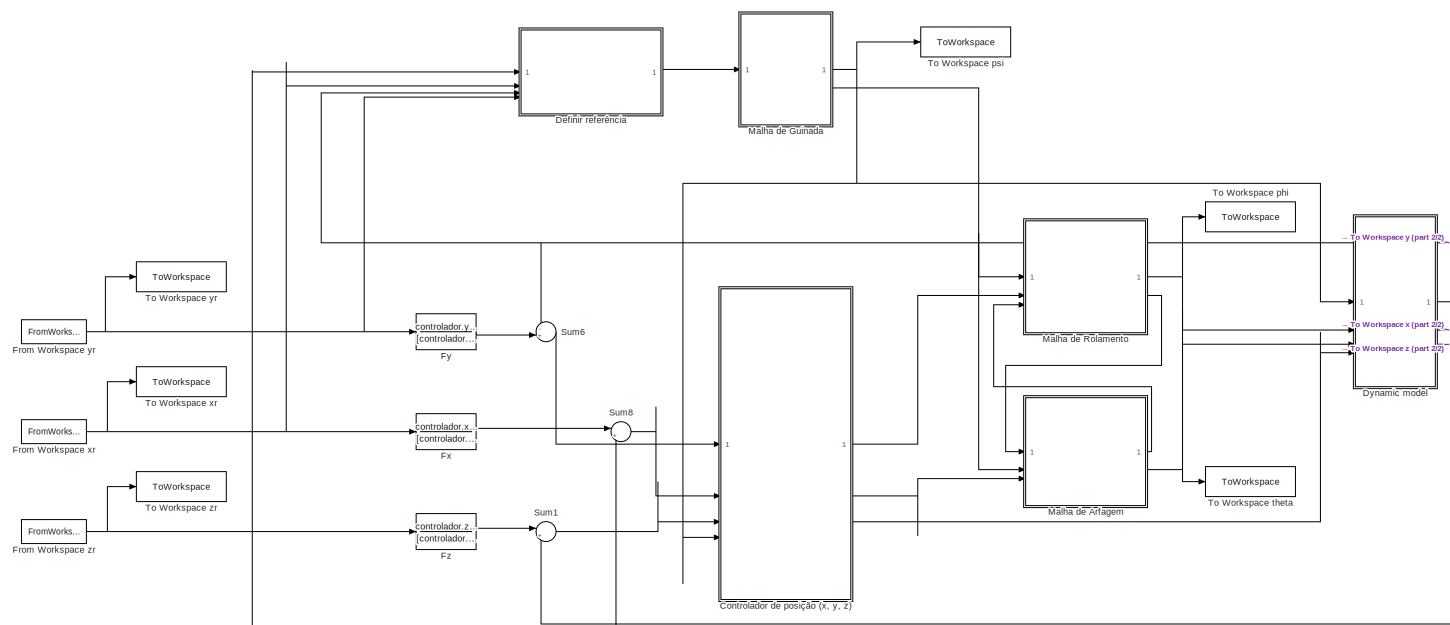
[diagram: root canvas - part 1/2, most of the canvas]
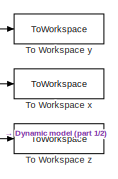
[diagram: root canvas - part 2/2, middle right region]
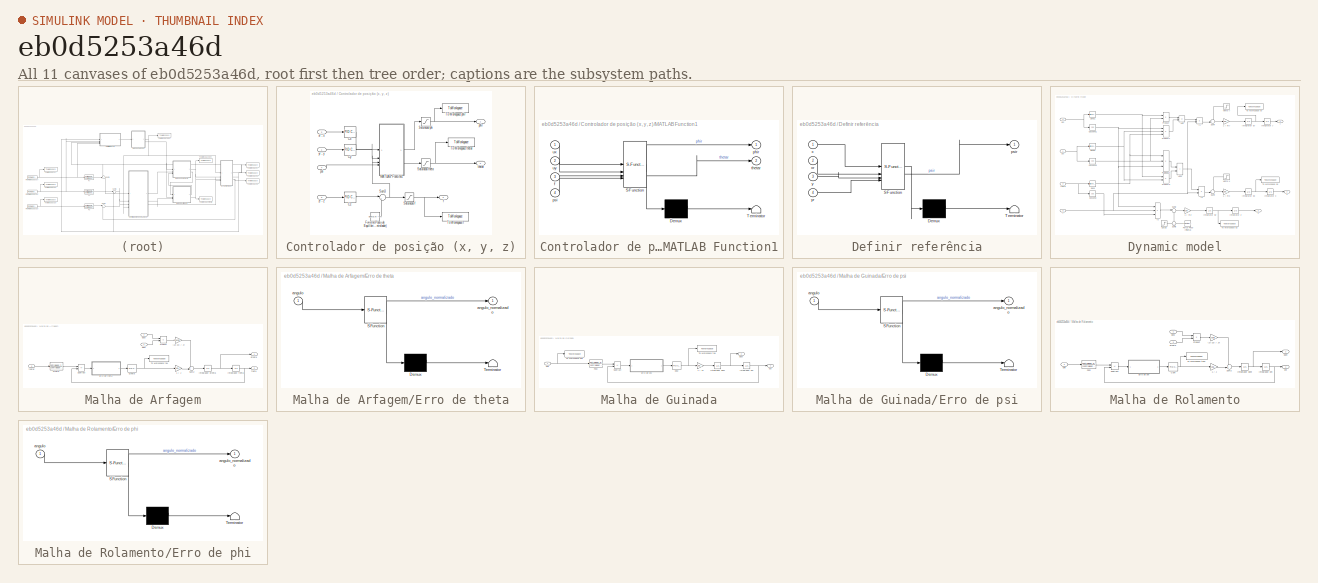
[diagram: thumbnail index - all 11 canvases of the model, root first then tree order]
MODEL slx_eb0d5253a46d
KIND model
CONFIG AbsTol = auto
CONFIG EnableMultiTasking = off
CONFIG FixedStep = 1e-3
CONFIG MaxStep = auto
CONFIG MinStep = auto
CONFIG RelTol = 1e-3
CONFIG SampleTimeConstraint = Unconstrained
CONFIG SolverName = ode1
CONFIG StartTime = 0.0
CONFIG StopTime = 20
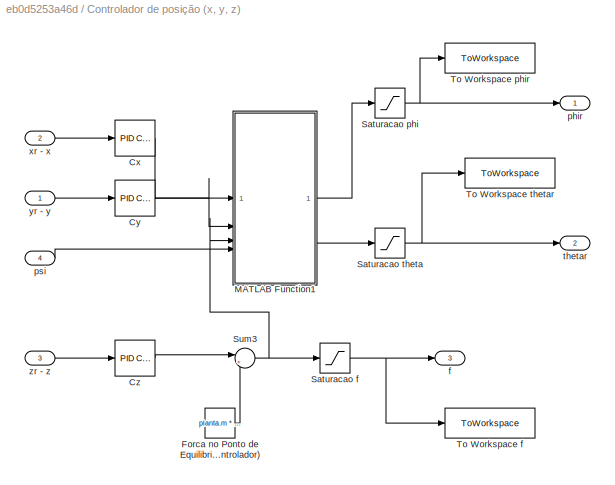
BLOCK [SubSystem] Controlador de posição (x, y, z)
BLOCK [Reference] Controlador de posição (x, y, z)/Cx  REF=slpidlib/PID Controller
  SourceBlock = slpidlib/PID Controller
  SourceType = PID 1dof
BLOCK [Reference] Controlador de posição (x, y, z)/Cy  REF=slpidlib/PID Controller
  SourceBlock = slpidlib/PID Controller
  SourceType = PID 1dof
BLOCK [Reference] Controlador de posição (x, y, z)/Cz  REF=slpidlib/PID Controller
  SourceBlock = slpidlib/PID Controller
  SourceType = PID 1dof
BLOCK [Constant] Controlador de posição (x, y, z)/Forca no Ponto de Equilibrio f0 (Controlador)
  Value = planta.m * planta.g
BLOCK [SubSystem] Controlador de posição (x, y, z)/MATLAB Function1
  ErrorFcn = Stateflow.Translate.translate
  PermitHierarchicalResolution = ExplicitOnly
  SFBlockType = MATLAB Function
  TreatAsAtomicUnit = on
BLOCK [Demux] Controlador de posição (x, y, z)/MATLAB Function1/ Demux 
  Outputs = 1
BLOCK [S-Function] Controlador de posição (x, y, z)/MATLAB Function1/ SFunction 
  EnableBusSupport = on
  FunctionName = sf_sfun
  PortCounts = [4 3]
  SFcnIsStateOwnerBlock = off
  SFunctionDeploymentMode = off
  Tag = Stateflow S-Function 6
BLOCK [Terminator] Controlador de posição (x, y, z)/MATLAB Function1/ Terminator 
BLOCK [Inport] Controlador de posição (x, y, z)/MATLAB Function1/f
  Port = 3
BLOCK [Outport] Controlador de posição (x, y, z)/MATLAB Function1/phir
BLOCK [Inport] Controlador de posição (x, y, z)/MATLAB Function1/psi
  Port = 4
BLOCK [Outport] Controlador de posição (x, y, z)/MATLAB Function1/thetar
  Port = 2
BLOCK [Inport] Controlador de posição (x, y, z)/MATLAB Function1/ux
BLOCK [Inport] Controlador de posição (x, y, z)/MATLAB Function1/uy
  Port = 2
BLOCK [Saturate] Controlador de posição (x, y, z)/Saturacao f
  LowerLimit = 0.2 * planta.m * planta.g
  UpperLimit = 1.8 * planta.m * planta.g
BLOCK [Saturate] Controlador de posição (x, y, z)/Saturacao phi
  LowerLimit = -20 * pi / 180
  UpperLimit = 20 * pi / 180
BLOCK [Saturate] Controlador de posição (x, y, z)/Saturacao theta
  LowerLimit = -20 * pi / 180
  UpperLimit = 20 * pi / 180
BLOCK [Sum] Controlador de posição (x, y, z)/Sum3
  Inputs = |++
BLOCK [ToWorkspace] Controlador de posição (x, y, z)/To Workspace f
  FixptAsFi = on
  MaxDataPoints = inf
  SampleTime = -1
  SaveFormat = Structure With Time
  VariableName = f
BLOCK [ToWorkspace] Controlador de posição (x, y, z)/To Workspace phir
  FixptAsFi = on
  MaxDataPoints = inf
  SampleTime = -1
  SaveFormat = Structure With Time
  VariableName = phir
BLOCK [ToWorkspace] Controlador de posição (x, y, z)/To Workspace thetar
  FixptAsFi = on
  MaxDataPoints = inf
  SampleTime = -1
  SaveFormat = Structure With Time
  VariableName = thetar
BLOCK [Outport] Controlador de posição (x, y, z)/f
  Port = 3
BLOCK [Outport] Controlador de posição (x, y, z)/phir
BLOCK [Inport] Controlador de posição (x, y, z)/psi
  Port = 4
BLOCK [Outport] Controlador de posição (x, y, z)/thetar
  Port = 2
BLOCK [Inport] Controlador de posição (x, y, z)/xr - x
  Port = 2
BLOCK [Inport] Controlador de posição (x, y, z)/yr - y
BLOCK [Inport] Controlador de posição (x, y, z)/zr - z
  Port = 3
BLOCK [SubSystem] Definir referência
  ErrorFcn = Stateflow.Translate.translate
  PermitHierarchicalResolution = ExplicitOnly
  SFBlockType = MATLAB Function
  TreatAsAtomicUnit = on
BLOCK [Demux] Definir referência/ Demux 
  Outputs = 1
BLOCK [S-Function] Definir referência/ SFunction 
  EnableBusSupport = on
  FunctionName = sf_sfun
  PortCounts = [4 2]
  SFcnIsStateOwnerBlock = off
  SFunctionDeploymentMode = off
  Tag = Stateflow S-Function 4
BLOCK [Terminator] Definir referência/ Terminator 
BLOCK [Outport] Definir referência/psir
BLOCK [Inport] Definir referência/x
BLOCK [Inport] Definir referência/xr
  Port = 2
BLOCK [Inport] Definir referência/y
  Port = 3
BLOCK [Inport] Definir referência/yr
  Port = 4
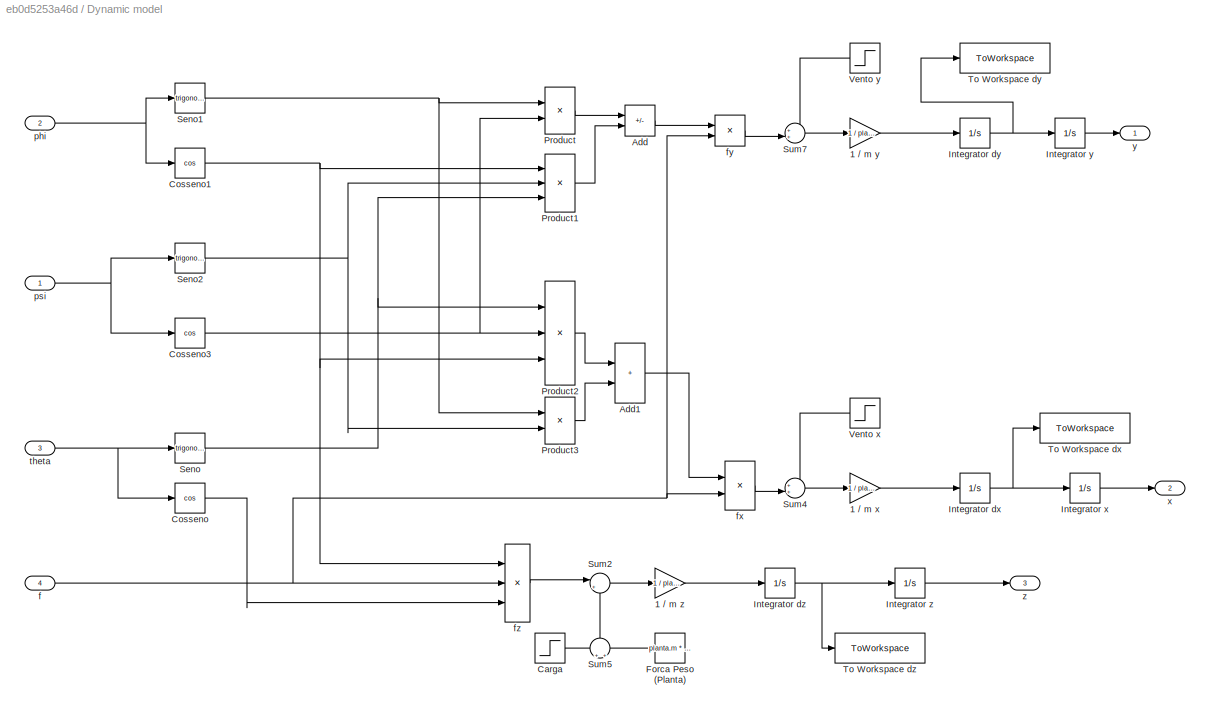
BLOCK [SubSystem] Dynamic model
BLOCK [Gain] Dynamic model/1 // m x
  Gain = 1 / planta.m
BLOCK [Gain] Dynamic model/1 // m y
  Gain = 1 / planta.m
BLOCK [Gain] Dynamic model/1 // m z
  Gain = 1 / planta.m
BLOCK [Sum] Dynamic model/Add
  IconShape = rectangular
  Inputs = -+
BLOCK [Sum] Dynamic model/Add1
  IconShape = rectangular
BLOCK [Step] Dynamic model/Carga
  After = carga * planta.g
  SampleTime = 0
  Time = 3
BLOCK [Trigonometry] Dynamic model/Cosseno
  Operator = cos
BLOCK [Trigonometry] Dynamic model/Cosseno1
  Operator = cos
BLOCK [Trigonometry] Dynamic model/Cosseno3
  Operator = cos
BLOCK [Constant] Dynamic model/Forca Peso (Planta)
  Value = planta.m * planta.g
BLOCK [Integrator] Dynamic model/Integrator dx
BLOCK [Integrator] Dynamic model/Integrator dy
BLOCK [Integrator] Dynamic model/Integrator dz
BLOCK [Integrator] Dynamic model/Integrator x
BLOCK [Integrator] Dynamic model/Integrator y
BLOCK [Integrator] Dynamic model/Integrator z
BLOCK [Product] Dynamic model/Product
BLOCK [Product] Dynamic model/Product1
  Inputs = 3
BLOCK [Product] Dynamic model/Product2
  Inputs = 3
BLOCK [Product] Dynamic model/Product3
BLOCK [Trigonometry] Dynamic model/Seno
BLOCK [Trigonometry] Dynamic model/Seno1
BLOCK [Trigonometry] Dynamic model/Seno2
BLOCK [Sum] Dynamic model/Sum2
  Inputs = |+-
BLOCK [Sum] Dynamic model/Sum4
  Inputs = ++|
BLOCK [Sum] Dynamic model/Sum5
  Inputs = +|+
  NameLocation = right
BLOCK [Sum] Dynamic model/Sum7
  Inputs = ++|
BLOCK [ToWorkspace] Dynamic model/To Workspace dx
  FixptAsFi = on
  MaxDataPoints = inf
  SampleTime = -1
  SaveFormat = Structure With Time
  VariableName = dx
BLOCK [ToWorkspace] Dynamic model/To Workspace dy
  FixptAsFi = on
  MaxDataPoints = inf
  SampleTime = -1
  SaveFormat = Structure With Time
  VariableName = dy
BLOCK [ToWorkspace] Dynamic model/To Workspace dz
  FixptAsFi = on
  MaxDataPoints = inf
  SampleTime = -1
  SaveFormat = Structure With Time
  VariableName = dz
BLOCK [Step] Dynamic model/Vento x
  After = ventoX
  SampleTime = 0
  Time = 3
BLOCK [Step] Dynamic model/Vento y
  After = ventoY
  SampleTime = 0
  Time = 3
BLOCK [Inport] Dynamic model/f
  Port = 4
BLOCK [Product] Dynamic model/fx
BLOCK [Product] Dynamic model/fy
BLOCK [Product] Dynamic model/fz
  Inputs = 3
BLOCK [Inport] Dynamic model/phi
  Port = 2
BLOCK [Inport] Dynamic model/psi
BLOCK [Inport] Dynamic model/theta
  Port = 3
BLOCK [Outport] Dynamic model/x
  Port = 2
BLOCK [Outport] Dynamic model/y
BLOCK [Outport] Dynamic model/z
  Port = 3
BLOCK [FromWorkspace] From Workspace xr
  VariableName = xr
BLOCK [FromWorkspace] From Workspace yr
  VariableName = yr
BLOCK [FromWorkspace] From Workspace zr
  VariableName = zr
BLOCK [TransferFcn] Fx
  Denominator = [controlador.x.Kd, controlador.x.Kp, controlador.x.Ki]
  Numerator = controlador.x.Ki
BLOCK [TransferFcn] Fy
  Denominator = [controlador.y.Kd, controlador.y.Kp, controlador.y.Ki]
  Numerator = controlador.y.Ki
BLOCK [TransferFcn] Fz
  Denominator = [controlador.z.Kd, controlador.z.Kp, controlador.z.Ki]
  Numerator = controlador.z.Ki
BLOCK [SubSystem] Malha de Arfagem
BLOCK [Gain] Malha de Arfagem/(Jz-Jx) // Jy
  Gain = (planta.Jz - planta.J)/planta.J
BLOCK [Gain] Malha de Arfagem/1 // J
  Gain = 1 / planta.J
BLOCK [Reference] Malha de Arfagem/Ctheta  REF=slpidlib/PID Controller
  SourceBlock = slpidlib/PID Controller
  SourceType = PID 1dof
BLOCK [SubSystem] Malha de Arfagem/Erro de theta
  ErrorFcn = Stateflow.Translate.translate
  PermitHierarchicalResolution = ExplicitOnly
  SFBlockType = MATLAB Function
  TreatAsAtomicUnit = on
BLOCK [Demux] Malha de Arfagem/Erro de theta/ Demux 
  Outputs = 1
BLOCK [S-Function] Malha de Arfagem/Erro de theta/ SFunction 
  EnableBusSupport = on
  FunctionName = sf_sfun
  PortCounts = [1 2]
  SFcnIsStateOwnerBlock = off
  SFunctionDeploymentMode = off
  Tag = Stateflow S-Function 3
BLOCK [Terminator] Malha de Arfagem/Erro de theta/ Terminator 
BLOCK [Inport] Malha de Arfagem/Erro de theta/angulo
BLOCK [Outport] Malha de Arfagem/Erro de theta/angulo_normalizado
BLOCK [TransferFcn] Malha de Arfagem/Ftheta
  Denominator = [controlador.theta.Kd, controlador.theta.Kp, controlador.theta.Ki]
  Numerator = controlador.theta.Ki
BLOCK [Integrator] Malha de Arfagem/Integrador dtheta
BLOCK [Integrator] Malha de Arfagem/Integrador theta
  InitialCondition = theta0
BLOCK [Product] Malha de Arfagem/Product
BLOCK [Sum] Malha de Arfagem/Subtract
  IconShape = rectangular
  Inputs = +-
BLOCK [Sum] Malha de Arfagem/Sum2
  Inputs = ++|
BLOCK [ToWorkspace] Malha de Arfagem/To Workspace tau
  FixptAsFi = on
  MaxDataPoints = inf
  SampleTime = -1
  SaveFormat = Structure With Time
  VariableName = tauy
BLOCK [Inport] Malha de Arfagem/dphi
BLOCK [Inport] Malha de Arfagem/dpsi
  Port = 2
BLOCK [Outport] Malha de Arfagem/dtheta
BLOCK [Outport] Malha de Arfagem/theta
  Port = 2
BLOCK [Inport] Malha de Arfagem/thetar
  Port = 3
BLOCK [SubSystem] Malha de Guinada
BLOCK [Gain] Malha de Guinada/1 // Jz
  Gain = 1 / planta.Jz
BLOCK [Reference] Malha de Guinada/Cpsi  REF=slpidlib/PID Controller
  SourceBlock = slpidlib/PID Controller
  SourceType = PID 1dof
BLOCK [SubSystem] Malha de Guinada/Erro de psi
  ErrorFcn = Stateflow.Translate.translate
  PermitHierarchicalResolution = ExplicitOnly
  SFBlockType = MATLAB Function
  TreatAsAtomicUnit = on
BLOCK [Demux] Malha de Guinada/Erro de psi/ Demux 
  Outputs = 1
BLOCK [S-Function] Malha de Guinada/Erro de psi/ SFunction 
  EnableBusSupport = on
  FunctionName = sf_sfun
  PortCounts = [1 2]
  SFcnIsStateOwnerBlock = off
  SFunctionDeploymentMode = off
  Tag = Stateflow S-Function 2
BLOCK [Terminator] Malha de Guinada/Erro de psi/ Terminator 
BLOCK [Inport] Malha de Guinada/Erro de psi/angulo
BLOCK [Outport] Malha de Guinada/Erro de psi/angulo_normalizado
BLOCK [TransferFcn] Malha de Guinada/Fpsi
  Denominator = [controlador.psi.Kd, controlador.psi.Kp, controlador.psi.Ki]
  Numerator = controlador.psi.Ki
BLOCK [Integrator] Malha de Guinada/Integrador dpsi
BLOCK [Integrator] Malha de Guinada/Integrador psi
  InitialCondition = theta0
BLOCK [Sum] Malha de Guinada/Subtract
  IconShape = rectangular
  Inputs = +-
BLOCK [ToWorkspace] Malha de Guinada/To Workspace psir
  FixptAsFi = on
  MaxDataPoints = inf
  SampleTime = -1
  SaveFormat = Structure With Time
  VariableName = psir
BLOCK [ToWorkspace] Malha de Guinada/To Workspace tau
  FixptAsFi = on
  MaxDataPoints = inf
  SampleTime = -1
  SaveFormat = Structure With Time
  VariableName = tauz
BLOCK [Outport] Malha de Guinada/dpsi
  Port = 2
BLOCK [Outport] Malha de Guinada/psi
BLOCK [Inport] Malha de Guinada/psir
BLOCK [SubSystem] Malha de Rolamento
BLOCK [Gain] Malha de Rolamento/(Jy-Jz) // Jx
  Gain = (planta.J - planta.Jz)/planta.J
BLOCK [Gain] Malha de Rolamento/1 // J
  Gain = 1 / planta.J
BLOCK [Reference] Malha de Rolamento/Cphi  REF=slpidlib/PID Controller
  SourceBlock = slpidlib/PID Controller
  SourceType = PID 1dof
BLOCK [SubSystem] Malha de Rolamento/Erro de phi
  ErrorFcn = Stateflow.Translate.translate
  PermitHierarchicalResolution = ExplicitOnly
  SFBlockType = MATLAB Function
  TreatAsAtomicUnit = on
BLOCK [Demux] Malha de Rolamento/Erro de phi/ Demux 
  Outputs = 1
BLOCK [S-Function] Malha de Rolamento/Erro de phi/ SFunction 
  EnableBusSupport = on
  FunctionName = sf_sfun
  PortCounts = [1 2]
  SFcnIsStateOwnerBlock = off
  SFunctionDeploymentMode = off
  Tag = Stateflow S-Function 1
BLOCK [Terminator] Malha de Rolamento/Erro de phi/ Terminator 
BLOCK [Inport] Malha de Rolamento/Erro de phi/angulo
BLOCK [Outport] Malha de Rolamento/Erro de phi/angulo_normalizado
BLOCK [TransferFcn] Malha de Rolamento/Fphi
  Denominator = [controlador.phi.Kd, controlador.phi.Kp, controlador.phi.Ki]
  Numerator = controlador.phi.Ki
BLOCK [Integrator] Malha de Rolamento/Integrador dphi
BLOCK [Integrator] Malha de Rolamento/Integrador phi
  InitialCondition = theta0
BLOCK [Product] Malha de Rolamento/Product
BLOCK [Sum] Malha de Rolamento/Subtract
  IconShape = rectangular
  Inputs = +-
BLOCK [Sum] Malha de Rolamento/Sum2
  Inputs = ++|
BLOCK [ToWorkspace] Malha de Rolamento/To Workspace taux
  FixptAsFi = on
  MaxDataPoints = inf
  SampleTime = -1
  SaveFormat = Structure With Time
  VariableName = taux
BLOCK [Outport] Malha de Rolamento/dphi
  Port = 2
BLOCK [Inport] Malha de Rolamento/dpsi
BLOCK [Inport] Malha de Rolamento/dtheta
  Port = 3
BLOCK [Outport] Malha de Rolamento/phi
BLOCK [Inport] Malha de Rolamento/phir
  Port = 2
BLOCK [Sum] Sum1
  Inputs = |+-
BLOCK [Sum] Sum6
  Inputs = -+|
BLOCK [Sum] Sum8
  Inputs = |+-
BLOCK [ToWorkspace] To Workspace phi
  FixptAsFi = on
  MaxDataPoints = inf
  SampleTime = -1
  SaveFormat = Structure With Time
  VariableName = phi
BLOCK [ToWorkspace] To Workspace psi
  FixptAsFi = on
  MaxDataPoints = inf
  SampleTime = -1
  SaveFormat = Structure With Time
  VariableName = psi
BLOCK [ToWorkspace] To Workspace theta
  FixptAsFi = on
  MaxDataPoints = inf
  SampleTime = -1
  SaveFormat = Structure With Time
  VariableName = theta
BLOCK [ToWorkspace] To Workspace x
  FixptAsFi = on
  MaxDataPoints = inf
  SampleTime = -1
  SaveFormat = Structure With Time
  VariableName = x
BLOCK [ToWorkspace] To Workspace xr
  FixptAsFi = on
  MaxDataPoints = inf
  SampleTime = -1
  SaveFormat = Structure With Time
  VariableName = xr
BLOCK [ToWorkspace] To Workspace y
  FixptAsFi = on
  MaxDataPoints = inf
  SampleTime = -1
  SaveFormat = Structure With Time
  VariableName = y
BLOCK [ToWorkspace] To Workspace yr
  FixptAsFi = on
  MaxDataPoints = inf
  SampleTime = -1
  SaveFormat = Structure With Time
  VariableName = yr
BLOCK [ToWorkspace] To Workspace z
  FixptAsFi = on
  MaxDataPoints = inf
  SampleTime = -1
  SaveFormat = Structure With Time
  VariableName = z
BLOCK [ToWorkspace] To Workspace zr
  FixptAsFi = on
  MaxDataPoints = inf
  SampleTime = -1
  SaveFormat = Structure With Time
  VariableName = zr
LINE Controlador de posição (x, y, z)/Cx:1 -> Controlador de posição (x, y, z)/MATLAB Function1:1
LINE Controlador de posição (x, y, z)/Cy:1 -> Controlador de posição (x, y, z)/MATLAB Function1:2
LINE Controlador de posição (x, y, z)/Cz:1 -> Controlador de posição (x, y, z)/Sum3:1
LINE Controlador de posição (x, y, z)/Forca no Ponto de Equilibrio f0 (Controlador):1 -> Controlador de posição (x, y, z)/Sum3:2
LINE Controlador de posição (x, y, z)/MATLAB Function1:1 -> Controlador de posição (x, y, z)/Saturacao phi:1
LINE Controlador de posição (x, y, z)/MATLAB Function1:2 -> Controlador de posição (x, y, z)/Saturacao theta:1
NET Controlador de posição (x, y, z)/Saturacao f:1 -> Controlador de posição (x, y, z)/To Workspace f:1, Controlador de posição (x, y, z)/f:1
NET Controlador de posição (x, y, z)/Saturacao phi:1 -> Controlador de posição (x, y, z)/To Workspace phir:1, Controlador de posição (x, y, z)/phir:1
NET Controlador de posição (x, y, z)/Saturacao theta:1 -> Controlador de posição (x, y, z)/To Workspace thetar:1, Controlador de posição (x, y, z)/thetar:1
NET Controlador de posição (x, y, z)/Sum3:1 -> Controlador de posição (x, y, z)/MATLAB Function1:3, Controlador de posição (x, y, z)/Saturacao f:1
LINE Controlador de posição (x, y, z)/psi:1 -> Controlador de posição (x, y, z)/MATLAB Function1:4
LINE Controlador de posição (x, y, z)/xr - x:1 -> Controlador de posição (x, y, z)/Cx:1
LINE Controlador de posição (x, y, z)/yr - y:1 -> Controlador de posição (x, y, z)/Cy:1
LINE Controlador de posição (x, y, z)/zr - z:1 -> Controlador de posição (x, y, z)/Cz:1
LINE Controlador de posição (x, y, z):1 -> Malha de Rolamento:2
LINE Controlador de posição (x, y, z):2 -> Malha de Arfagem:3
LINE Controlador de posição (x, y, z):3 -> Dynamic model:4
LINE Definir referência:1 -> Malha de Guinada:1
LINE Dynamic model/1 // m x:1 -> Dynamic model/Integrator dx:1
LINE Dynamic model/1 // m y:1 -> Dynamic model/Integrator dy:1
LINE Dynamic model/1 // m z:1 -> Dynamic model/Integrator dz:1
LINE Dynamic model/Add1:1 -> Dynamic model/fx:1
LINE Dynamic model/Add:1 -> Dynamic model/fy:1
LINE Dynamic model/Carga:1 -> Dynamic model/Sum5:1
NET Dynamic model/Cosseno1:1 -> Dynamic model/Product1:1, Dynamic model/Product2:3, Dynamic model/fz:1
NET Dynamic model/Cosseno3:1 -> Dynamic model/Product2:2, Dynamic model/Product:2
LINE Dynamic model/Cosseno:1 -> Dynamic model/fz:3
LINE Dynamic model/Forca Peso (Planta):1 -> Dynamic model/Sum5:2
NET Dynamic model/Integrator dx:1 -> Dynamic model/Integrator x:1, Dynamic model/To Workspace dx:1
NET Dynamic model/Integrator dy:1 -> Dynamic model/Integrator y:1, Dynamic model/To Workspace dy:1
NET Dynamic model/Integrator dz:1 -> Dynamic model/Integrator z:1, Dynamic model/To Workspace dz:1
LINE Dynamic model/Integrator x:1 -> Dynamic model/x:1
LINE Dynamic model/Integrator y:1 -> Dynamic model/y:1
LINE Dynamic model/Integrator z:1 -> Dynamic model/z:1
LINE Dynamic model/Product1:1 -> Dynamic model/Add:2
LINE Dynamic model/Product2:1 -> Dynamic model/Add1:1
LINE Dynamic model/Product3:1 -> Dynamic model/Add1:2
LINE Dynamic model/Product:1 -> Dynamic model/Add:1
NET Dynamic model/Seno1:1 -> Dynamic model/Product3:1, Dynamic model/Product:1
NET Dynamic model/Seno2:1 -> Dynamic model/Product1:2, Dynamic model/Product3:2
NET Dynamic model/Seno:1 -> Dynamic model/Product1:3, Dynamic model/Product2:1
LINE Dynamic model/Sum2:1 -> Dynamic model/1 // m z:1
LINE Dynamic model/Sum4:1 -> Dynamic model/1 // m x:1
LINE Dynamic model/Sum5:1 -> Dynamic model/Sum2:2
LINE Dynamic model/Sum7:1 -> Dynamic model/1 // m y:1
LINE Dynamic model/Vento x:1 -> Dynamic model/Sum4:1
LINE Dynamic model/Vento y:1 -> Dynamic model/Sum7:1
NET Dynamic model/f:1 -> Dynamic model/fx:2, Dynamic model/fy:2, Dynamic model/fz:2
LINE Dynamic model/fx:1 -> Dynamic model/Sum4:2
LINE Dynamic model/fy:1 -> Dynamic model/Sum7:2
LINE Dynamic model/fz:1 -> Dynamic model/Sum2:1
NET Dynamic model/phi:1 -> Dynamic model/Cosseno1:1, Dynamic model/Seno1:1
NET Dynamic model/psi:1 -> Dynamic model/Cosseno3:1, Dynamic model/Seno2:1
NET Dynamic model/theta:1 -> Dynamic model/Cosseno:1, Dynamic model/Seno:1
NET Dynamic model:1 -> Definir referência:3, Sum6:1, To Workspace y:1
NET Dynamic model:2 -> Definir referência:1, Sum8:2, To Workspace x:1
NET Dynamic model:3 -> Sum1:2, To Workspace z:1
NET From Workspace xr:1 -> Definir referência:2, Fx:1, To Workspace xr:1
NET From Workspace yr:1 -> Definir referência:4, Fy:1, To Workspace yr:1
NET From Workspace zr:1 -> Fz:1, To Workspace zr:1
LINE Fx:1 -> Sum8:1
LINE Fy:1 -> Sum6:2
LINE Fz:1 -> Sum1:1
LINE Malha de Arfagem/(Jz-Jx) // Jy:1 -> Malha de Arfagem/Sum2:1
LINE Malha de Arfagem/1 // J:1 -> Malha de Arfagem/Sum2:2
NET Malha de Arfagem/Ctheta:1 -> Malha de Arfagem/1 // J:1, Malha de Arfagem/To Workspace tau:1
LINE Malha de Arfagem/Erro de theta:1 -> Malha de Arfagem/Ctheta:1
LINE Malha de Arfagem/Ftheta:1 -> Malha de Arfagem/Subtract:1
NET Malha de Arfagem/Integrador dtheta:1 -> Malha de Arfagem/Integrador theta:1, Malha de Arfagem/dtheta:1
NET Malha de Arfagem/Integrador theta:1 -> Malha de Arfagem/Subtract:2, Malha de Arfagem/theta:1
LINE Malha de Arfagem/Product:1 -> Malha de Arfagem/(Jz-Jx) // Jy:1
LINE Malha de Arfagem/Subtract:1 -> Malha de Arfagem/Erro de theta:1
LINE Malha de Arfagem/Sum2:1 -> Malha de Arfagem/Integrador dtheta:1
LINE Malha de Arfagem/dphi:1 -> Malha de Arfagem/Product:2
LINE Malha de Arfagem/dpsi:1 -> Malha de Arfagem/Product:1
LINE Malha de Arfagem/thetar:1 -> Malha de Arfagem/Ftheta:1
LINE Malha de Arfagem:1 -> Malha de Rolamento:3
NET Malha de Arfagem:2 -> Dynamic model:3, To Workspace theta:1
LINE Malha de Guinada/1 // Jz:1 -> Malha de Guinada/Integrador dpsi:1
NET Malha de Guinada/Cpsi:1 -> Malha de Guinada/1 // Jz:1, Malha de Guinada/To Workspace tau:1
LINE Malha de Guinada/Erro de psi:1 -> Malha de Guinada/Cpsi:1
LINE Malha de Guinada/Fpsi:1 -> Malha de Guinada/Subtract:1
NET Malha de Guinada/Integrador dpsi:1 -> Malha de Guinada/Integrador psi:1, Malha de Guinada/dpsi:1
NET Malha de Guinada/Integrador psi:1 -> Malha de Guinada/Subtract:2, Malha de Guinada/psi:1
LINE Malha de Guinada/Subtract:1 -> Malha de Guinada/Erro de psi:1
NET Malha de Guinada/psir:1 -> Malha de Guinada/Fpsi:1, Malha de Guinada/To Workspace psir:1
NET Malha de Guinada:1 -> Controlador de posição (x, y, z):4, Dynamic model:1, To Workspace psi:1
NET Malha de Guinada:2 -> Malha de Arfagem:2, Malha de Rolamento:1
LINE Malha de Rolamento/(Jy-Jz) // Jx:1 -> Malha de Rolamento/Sum2:1
LINE Malha de Rolamento/1 // J:1 -> Malha de Rolamento/Sum2:2
NET Malha de Rolamento/Cphi:1 -> Malha de Rolamento/1 // J:1, Malha de Rolamento/To Workspace taux:1
LINE Malha de Rolamento/Erro de phi:1 -> Malha de Rolamento/Cphi:1
LINE Malha de Rolamento/Fphi:1 -> Malha de Rolamento/Subtract:1
NET Malha de Rolamento/Integrador dphi:1 -> Malha de Rolamento/Integrador phi:1, Malha de Rolamento/dphi:1
NET Malha de Rolamento/Integrador phi:1 -> Malha de Rolamento/Subtract:2, Malha de Rolamento/phi:1
LINE Malha de Rolamento/Product:1 -> Malha de Rolamento/(Jy-Jz) // Jx:1
LINE Malha de Rolamento/Subtract:1 -> Malha de Rolamento/Erro de phi:1
LINE Malha de Rolamento/Sum2:1 -> Malha de Rolamento/Integrador dphi:1
LINE Malha de Rolamento/dpsi:1 -> Malha de Rolamento/Product:1
LINE Malha de Rolamento/dtheta:1 -> Malha de Rolamento/Product:2
LINE Malha de Rolamento/phir:1 -> Malha de Rolamento/Fphi:1
NET Malha de Rolamento:1 -> Dynamic model:2, To Workspace phi:1
LINE Malha de Rolamento:2 -> Malha de Arfagem:1
LINE Sum1:1 -> Controlador de posição (x, y, z):3
LINE Sum6:1 -> Controlador de posição (x, y, z):1
LINE Sum8:1 -> Controlador de posição (x, y, z):2
note: NET lines group one-source signal fan-out (src -> all destinations, sorted); 1:1 wires keep LINE
CHART Malha de Rolamento/Erro de phi states=1 transitions=1
  STATE_LABEL 'eML_blk_kernel()'
  STATE_LABEL 'SCRIPT:\nfunction angulo_normalizado = fcn(angulo)\n\nangulo_normalizado =  mod(angulo + pi, 2*pi) - pi;\n\nend\n'
CHART Malha de Guinada/Erro de psi states=1 transitions=1
  STATE_LABEL 'eML_blk_kernel()'
  STATE_LABEL 'SCRIPT:\nfunction angulo_normalizado = fcn(angulo)\n\nangulo_normalizado = mod(angulo + pi, 2*pi) - pi;\n\nend\n'
CHART Malha de Arfagem/Erro de theta states=1 transitions=1
  STATE_LABEL 'eML_blk_kernel()'
  STATE_LABEL 'SCRIPT:\nfunction angulo_normalizado = fcn(angulo)\n\nangulo_normalizado = mod(angulo + pi, 2*pi) - pi;\n\nend\n'
CHART Definir referência states=1 transitions=1
  STATE_LABEL 'eML_blk_kernel()'
  STATE_LABEL 'SCRIPT:\nfunction psir = calcularPsir(x, xr, y, yr)\n\n    persistent psir_cont psir_anterior\n\n    dx = xr - x;\n    dy = yr - y;\n\n    psir = atan2(dy, dx);\n\n    % A referencia deve ser continua no tempo\n    if isempty(psir_cont)\n        psir_cont = psir;\n        psir_anterior = psir_cont;\n    end\n\n    delta = mod(psir - psir_anterior + pi, 2*pi) - pi;\n\n    psir_cont = psir_cont + delta;\n    psir_ante...<+41ch>'
CHART Controlador de posição (x, y, z)/MATLAB Function1 states=1 transitions=1
  STATE_LABEL 'eML_blk_kernel()'
  STATE_LABEL 'SCRIPT:\nfunction [phir, thetar]= fcn(ux, uy, f, psi)\n\nphir = (ux*sin(psi) - uy*cos(psi))/f;\nthetar = (ux*cos(psi) + uy*sin(psi))/f;\n\nend\n'
CHART  states=0 transitions=0
CHART  states=0 transitions=0
CHART  states=0 transitions=0
CHART  states=0 transitions=0
CHART  states=0 transitions=0
